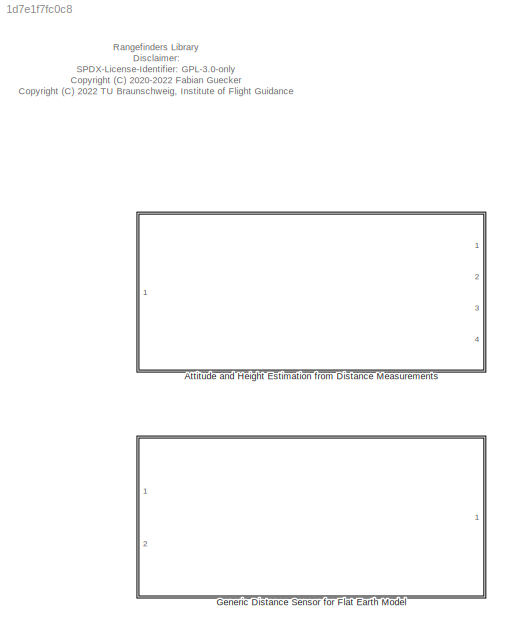
MODEL slx_1d7e1f7fc0c8
KIND library
CONFIG AbsTol = auto
CONFIG EnableMultiTasking = off
CONFIG FixedStep = auto
CONFIG MaxStep = auto
CONFIG MinStep = auto
CONFIG RelTol = 1e-3
CONFIG SampleTimeConstraint = Unconstrained
CONFIG Solver = VariableStepAuto
CONFIG SolverName = VariableStepAuto
CONFIG StartTime = 0.0
CONFIG StopTime = 10.0
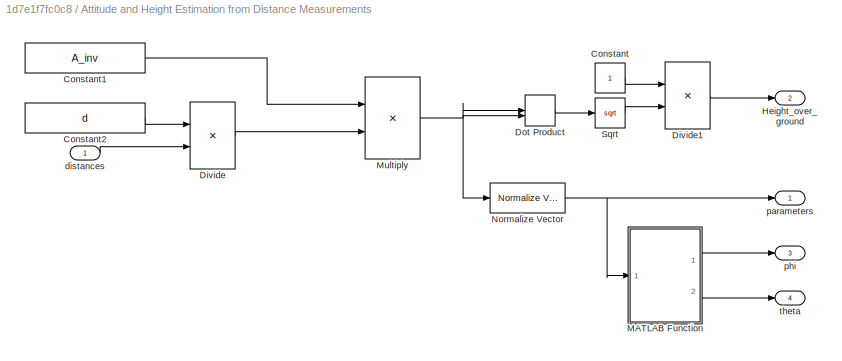
BLOCK [SubSystem] Attitude and Height Estimation from Distance Measurements
  Ports = [1, 4]
  RequestExecContextInheritance = off
BLOCK [Constant] Attitude and Height Estimation from Distance Measurements/Constant
BLOCK [Constant] Attitude and Height Estimation from Distance Measurements/Constant1
  Value = A_inv
  VectorParams1D = off
BLOCK [Constant] Attitude and Height Estimation from Distance Measurements/Constant2
  Value = d
  VectorParams1D = off
BLOCK [Product] Attitude and Height Estimation from Distance Measurements/Divide
  InputSameDT = off
  Inputs = */
  OutDataTypeStr = Inherit: Inherit via internal rule
  Ports = [2, 1]
  RndMeth = Floor
  SaturateOnIntegerOverflow = off
BLOCK [Product] Attitude and Height Estimation from Distance Measurements/Divide1
  InputSameDT = off
  Inputs = */
  OutDataTypeStr = Inherit: Inherit via internal rule
  Ports = [2, 1]
  RndMeth = Floor
  SaturateOnIntegerOverflow = off
BLOCK [DotProduct] Attitude and Height Estimation from Distance Measurements/Dot Product
  OutDataTypeStr = Inherit: Inherit via internal rule
BLOCK [Outport] Attitude and Height Estimation from Distance Measurements/Height_over_ground
  IconDisplay = Port number
  Port = 2
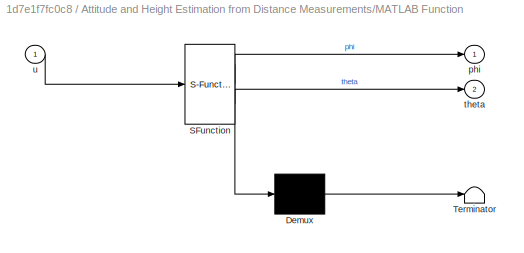
BLOCK [SubSystem] Attitude and Height Estimation from Distance Measurements/MATLAB Function
  ErrorFcn = Stateflow.Translate.translate
  PermitHierarchicalResolution = ExplicitOnly
  Ports = [1, 2]
  RequestExecContextInheritance = off
  SFBlockType = MATLAB Function
  TreatAsAtomicUnit = on
BLOCK [Demux] Attitude and Height Estimation from Distance Measurements/MATLAB Function/ Demux 
  Outputs = 1
  Ports = [1, 1]
BLOCK [S-Function] Attitude and Height Estimation from Distance Measurements/MATLAB Function/ SFunction 
  EnableBusSupport = on
  FunctionName = sf_sfun
  PortCounts = [1 3]
  Ports = [1, 3]
  SFcnIsStateOwnerBlock = off
  SFunctionDeploymentMode = off
  Tag = Stateflow S-Function rangefinders_lib 3
BLOCK [Terminator] Attitude and Height Estimation from Distance Measurements/MATLAB Function/ Terminator 
BLOCK [Outport] Attitude and Height Estimation from Distance Measurements/MATLAB Function/phi
  IconDisplay = Port number
BLOCK [Outport] Attitude and Height Estimation from Distance Measurements/MATLAB Function/theta
  IconDisplay = Port number
  Port = 2
BLOCK [Inport] Attitude and Height Estimation from Distance Measurements/MATLAB Function/u
  IconDisplay = Port number
BLOCK [Product] Attitude and Height Estimation from Distance Measurements/Multiply
  InputSameDT = off
  Multiplication = Matrix(*)
  OutDataTypeStr = Inherit: Inherit via internal rule
  Ports = [2, 1]
  RndMeth = Floor
  SaturateOnIntegerOverflow = off
BLOCK [Reference] Attitude and Height Estimation from Distance Measurements/Normalize Vector  REF=vrlib/Utilities/Normalize Vector
  Ports = [1, 1]
  SourceBlock = vrlib/Utilities/Normalize Vector
  SourceProductBaseCode = VR
  SourceProductName = Simulink 3D Animation
  SourceType = Normalize Vector
BLOCK [Sqrt] Attitude and Height Estimation from Distance Measurements/Sqrt
BLOCK [Inport] Attitude and Height Estimation from Distance Measurements/distances
  IconDisplay = Port number
BLOCK [Outport] Attitude and Height Estimation from Distance Measurements/parameters
  IconDisplay = Port number
BLOCK [Outport] Attitude and Height Estimation from Distance Measurements/phi
  IconDisplay = Port number
  Port = 3
BLOCK [Outport] Attitude and Height Estimation from Distance Measurements/theta
  IconDisplay = Port number
  Port = 4
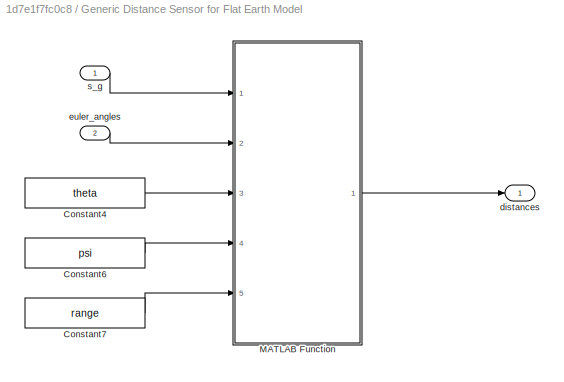
BLOCK [SubSystem] Generic Distance Sensor for Flat Earth Model
  Ports = [2, 1]
  RequestExecContextInheritance = off
BLOCK [Constant] Generic Distance Sensor for Flat Earth Model/Constant4
  Value = theta
  VectorParams1D = off
BLOCK [Constant] Generic Distance Sensor for Flat Earth Model/Constant6
  Value = psi
  VectorParams1D = off
BLOCK [Constant] Generic Distance Sensor for Flat Earth Model/Constant7
  Value = range
  VectorParams1D = off
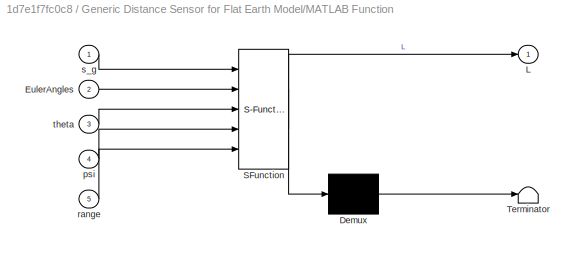
BLOCK [SubSystem] Generic Distance Sensor for Flat Earth Model/MATLAB Function
  ErrorFcn = Stateflow.Translate.translate
  PermitHierarchicalResolution = ExplicitOnly
  Ports = [5, 1]
  RequestExecContextInheritance = off
  SFBlockType = MATLAB Function
  TreatAsAtomicUnit = on
BLOCK [Demux] Generic Distance Sensor for Flat Earth Model/MATLAB Function/ Demux 
  Outputs = 1
  Ports = [1, 1]
BLOCK [S-Function] Generic Distance Sensor for Flat Earth Model/MATLAB Function/ SFunction 
  EnableBusSupport = on
  FunctionName = sf_sfun
  PortCounts = [5 2]
  Ports = [5, 2]
  SFcnIsStateOwnerBlock = off
  SFunctionDeploymentMode = off
  Tag = Stateflow S-Function rangefinders_lib 10
BLOCK [Terminator] Generic Distance Sensor for Flat Earth Model/MATLAB Function/ Terminator 
BLOCK [Inport] Generic Distance Sensor for Flat Earth Model/MATLAB Function/EulerAngles
  IconDisplay = Port number
  Port = 2
BLOCK [Outport] Generic Distance Sensor for Flat Earth Model/MATLAB Function/L
  IconDisplay = Port number
BLOCK [Inport] Generic Distance Sensor for Flat Earth Model/MATLAB Function/psi
  IconDisplay = Port number
  Port = 4
BLOCK [Inport] Generic Distance Sensor for Flat Earth Model/MATLAB Function/range
  IconDisplay = Port number
  Port = 5
BLOCK [Inport] Generic Distance Sensor for Flat Earth Model/MATLAB Function/s_g
  IconDisplay = Port number
BLOCK [Inport] Generic Distance Sensor for Flat Earth Model/MATLAB Function/theta
  IconDisplay = Port number
  Port = 3
BLOCK [Outport] Generic Distance Sensor for Flat Earth Model/distances
  IconDisplay = Port number
BLOCK [Inport] Generic Distance Sensor for Flat Earth Model/euler_angles
  IconDisplay = Port number
  Port = 2
BLOCK [Inport] Generic Distance Sensor for Flat Earth Model/s_g
  IconDisplay = Port number
ANNOTATION (root): Rangefinders Library Disclaimer: SPDX-License-Identifier: GPL-3.0-only <copyright redacted>
LINE Attitude and Height Estimation from Distance Measurements/Constant1:1 -> Attitude and Height Estimation from Distance Measurements/Multiply:1
LINE Attitude and Height Estimation from Distance Measurements/Constant2:1 -> Attitude and Height Estimation from Distance Measurements/Divide:1
LINE Attitude and Height Estimation from Distance Measurements/Constant:1 -> Attitude and Height Estimation from Distance Measurements/Divide1:1
LINE Attitude and Height Estimation from Distance Measurements/Divide1:1 -> Attitude and Height Estimation from Distance Measurements/Height_over_ground:1
LINE Attitude and Height Estimation from Distance Measurements/Divide:1 -> Attitude and Height Estimation from Distance Measurements/Multiply:2
LINE Attitude and Height Estimation from Distance Measurements/Dot Product:1 -> Attitude and Height Estimation from Distance Measurements/Sqrt:1
LINE Attitude and Height Estimation from Distance Measurements/MATLAB Function:1 -> Attitude and Height Estimation from Distance Measurements/phi:1
LINE Attitude and Height Estimation from Distance Measurements/MATLAB Function:2 -> Attitude and Height Estimation from Distance Measurements/theta:1
NET Attitude and Height Estimation from Distance Measurements/Multiply:1 -> Attitude and Height Estimation from Distance Measurements/Dot Product:1, Attitude and Height Estimation from Distance Measurements/Dot Product:2, Attitude and Height Estimation from Distance Measurements/Normalize Vector:1
NET Attitude and Height Estimation from Distance Measurements/Normalize Vector:1 -> Attitude and Height Estimation from Distance Measurements/MATLAB Function:1, Attitude and Height Estimation from Distance Measurements/parameters:1
LINE Attitude and Height Estimation from Distance Measurements/Sqrt:1 -> Attitude and Height Estimation from Distance Measurements/Divide1:2
LINE Attitude and Height Estimation from Distance Measurements/distances:1 -> Attitude and Height Estimation from Distance Measurements/Divide:2
LINE Generic Distance Sensor for Flat Earth Model/Constant4:1 -> Generic Distance Sensor for Flat Earth Model/MATLAB Function:3
LINE Generic Distance Sensor for Flat Earth Model/Constant6:1 -> Generic Distance Sensor for Flat Earth Model/MATLAB Function:4
LINE Generic Distance Sensor for Flat Earth Model/Constant7:1 -> Generic Distance Sensor for Flat Earth Model/MATLAB Function:5
LINE Generic Distance Sensor for Flat Earth Model/MATLAB Function:1 -> Generic Distance Sensor for Flat Earth Model/distances:1
LINE Generic Distance Sensor for Flat Earth Model/euler_angles:1 -> Generic Distance Sensor for Flat Earth Model/MATLAB Function:2
LINE Generic Distance Sensor for Flat Earth Model/s_g:1 -> Generic Distance Sensor for Flat Earth Model/MATLAB Function:1
note: NET lines group one-source signal fan-out (src -> all destinations, sorted); 1:1 wires keep LINE
CHART Attitude and Height Estimation from Distance Measurements/MATLAB Function states=1 transitions=1
  STATE_LABEL 'eML_blk_kernel()'
  STATE_LABEL 'SCRIPT:\nfunction [phi,theta] = fcn(u)\n\nphi   = atan2(u(2), u(3));\ntheta = atan2(-u(1), sqrt(u(2)^2 + u(3)^2));\n\nend'
CHART Generic Distance Sensor for Flat Earth Model/MATLAB Function states=1 transitions=1
  STATE_LABEL 'eML_blk_kernel()'
  STATE_LABEL "SCRIPT:\nfunction L  = calc_length(s_g,EulerAngles,theta,psi,range)\n\nn  = [0 0 1];\nV0 = [0 0 0];\nP0 = [0 0 s_g(3)];\n\nM_bg = euler2Dcm(EulerAngles);\n\nL = zeros(length(theta),1);\n\nfor i=1:length(theta)\n    matrix_rot_T  = euler2Dcm(pi/180*[0 theta(i) psi(i)])';\n    normal_vector = matrix_rot_T * [range(i); 0; 0];\n    u = (M_bg' * normal_vector)';\n    L(i) = plane_line_intersect(n,V0,P0,u);\nend\n\n\nend\n...<+265ch>"
